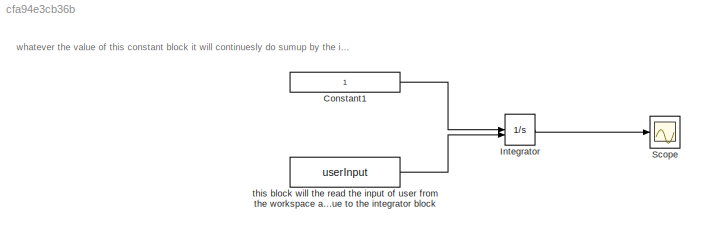
MODEL slx_cfa94e3cb36b
KIND model
CONFIG AbsTol = auto
CONFIG EnableMultiTasking = off
CONFIG FixedStep = auto
CONFIG MaxStep = auto
CONFIG MinStep = auto
CONFIG RelTol = 1e-3
CONFIG SampleTimeConstraint = Unconstrained
CONFIG SolverName = VariableStepAuto
CONFIG StartTime = 0.0
CONFIG StopTime = 10
BLOCK [Constant] Constant1
BLOCK [Integrator] Integrator
  InitialCondition = userInput
  InitialConditionSource = external
BLOCK [Scope] Scope
  Floating = off
  NumInputPorts = 1
  ScopeSpecificationString = Simulink.scopes.TimeScopeBlockCfg('CurrentConfiguration', extmgr.ConfigurationSet(extmgr.Configuration('Core','General UI',true),extmgr.Configuration('Core','Source UI',true),extmgr.Configuration('Sources','WiredSimulink',true),extmgr.Configuration('Visuals','Time Domain',true,'SerializedDisplays',{struct('MinYLimReal','8.75','MaxYLimReal','21.25','YLabelReal','','MinYLimMag','8.75','MaxYLimMag','...<+1419ch>
BLOCK [Constant] this block will the read the input of user from the workspace and feed the external initial value to the integrator block
  Value = userInput
ANNOTATION (root): whatever the value of this constant block it will continuesly do sumup by the integrator block
LINE Constant1:1 -> Integrator:1
LINE Integrator:1 -> Scope:1
LINE this block will the read the input of user from the workspace and feed the external initial value to the integrator block:1 -> Integrator:2
